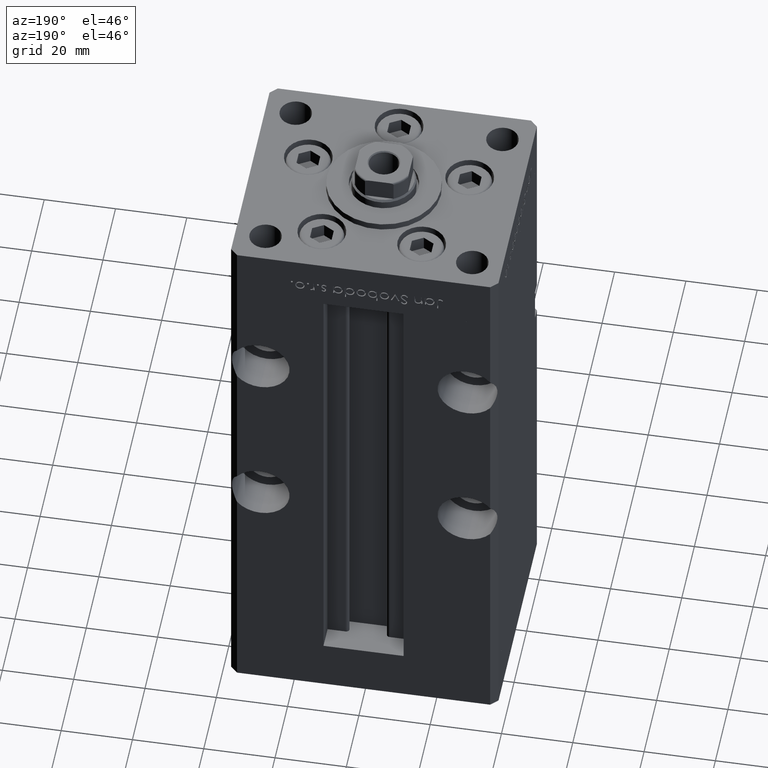
[diagram: clean part render]
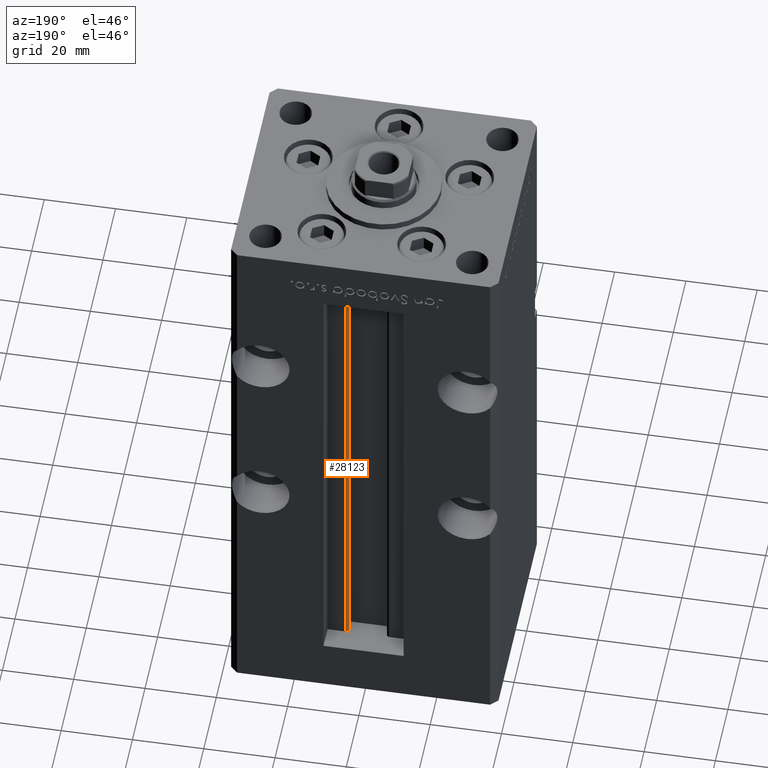
[diagram: same view with one face highlighted and labeled with its STEP entity id]
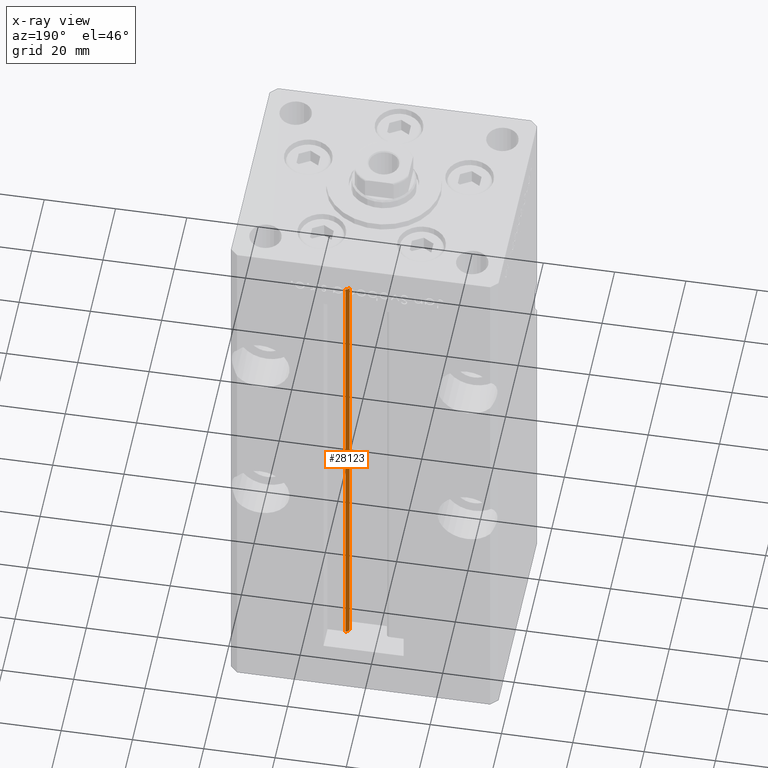
[diagram: x-ray of the same camera — body ghosted, the highlighted face saturated]
A machine part, auxiliary view. The second image highlights one B-rep face of the part: STEP entity #28123.
The next image is the same camera in x-ray: the body ghosted, the highlighted face saturated — about 0% of this face is hidden behind the body in this view.
In plain terms, the highlighted cylindrical surface (edge-blend (fillet) strip) has radius 0.9333 mm, axis along (0, 0, 1).
Its self-contained STEP definition (entity closure, byte-faithful):
#372 = VERTEX_POINT ( 'NONE', #1128 ) ;
#479 = EDGE_CURVE ( 'NONE', #30741, #53123, #1647, .T. ) ;
#1128 = CARTESIAN_POINT ( 'NONE',  ( 5.375042956467926736, 24.59999999999899245, 136.0000000000000000 ) ) ;
#1612 = DIRECTION ( 'NONE',  ( 1.000000000000000000, 0.000000000000000000, 0.000000000000000000 ) ) ;
#1647 = LINE ( 'NONE', #14025, #38222 ) ;
#5632 = EDGE_LOOP ( 'NONE', ( #42527, #52243, #28852, #18703 ) ) ;
#7353 = CARTESIAN_POINT ( 'NONE',  ( 5.375042956467928512, 24.59999999999899245, 0.000000000000000000 ) ) ;
#12740 = CARTESIAN_POINT ( 'NONE',  ( 5.375042956467928512, 24.59999999999899245, 0.000000000000000000 ) ) ;
#14025 = CARTESIAN_POINT ( 'NONE',  ( 6.183333333333980164, 26.00000000000000000, 0.000000000000000000 ) ) ;
#15993 = DIRECTION ( 'NONE',  ( -0.000000000000000000, -0.000000000000000000, 1.000000000000000000 ) ) ;
#16372 = VECTOR ( 'NONE', #15993, 1000.000000000000000 ) ;
#18703 = ORIENTED_EDGE ( 'NONE', *, *, #52241, .T. ) ;
#19181 = DIRECTION ( 'NONE',  ( -0.000000000000000000, -0.000000000000000000, 1.000000000000000000 ) ) ;
#20818 = EDGE_CURVE ( 'NONE', #32495, #372, #32624, .T. ) ;
#23735 = FACE_OUTER_BOUND ( 'NONE', #5632, .T. ) ;
#27493 = CARTESIAN_POINT ( 'NONE',  ( 6.183333333333980164, 25.06666666666599852, 0.000000000000000000 ) ) ;
#27718 = CIRCLE ( 'NONE', #47515, 0.9333333333340008142 ) ;
#28123 = ADVANCED_FACE ( 'NONE', ( #23735 ), #40132, .T. ) ;
#28301 = DIRECTION ( 'NONE',  ( 1.000000000000000000, 0.000000000000000000, 0.000000000000000000 ) ) ;
#28823 = CARTESIAN_POINT ( 'NONE',  ( 6.183333333333980164, 25.06666666666599852, 0.000000000000000000 ) ) ;
#28852 = ORIENTED_EDGE ( 'NONE', *, *, #20818, .T. ) ;
#30144 = DIRECTION ( 'NONE',  ( -0.000000000000000000, -0.000000000000000000, 1.000000000000000000 ) ) ;
#30444 = CIRCLE ( 'NONE', #32191, 0.9333333333340008142 ) ;
#30741 = VERTEX_POINT ( 'NONE', #37484 ) ;
#31452 = CARTESIAN_POINT ( 'NONE',  ( 6.183333333333980164, 26.00000000000000000, 136.0000000000000000 ) ) ;
#32191 = AXIS2_PLACEMENT_3D ( 'NONE', #28823, #40940, #28301 ) ;
#32495 = VERTEX_POINT ( 'NONE', #7353 ) ;
#32624 = LINE ( 'NONE', #12740, #16372 ) ;
#37484 = CARTESIAN_POINT ( 'NONE',  ( 6.183333333333980164, 26.00000000000000000, 0.000000000000000000 ) ) ;
#38222 = VECTOR ( 'NONE', #30144, 1000.000000000000000 ) ;
#38448 = CARTESIAN_POINT ( 'NONE',  ( 6.183333333333980164, 25.06666666666599852, 136.0000000000000000 ) ) ;
#38797 = EDGE_CURVE ( 'NONE', #32495, #30741, #30444, .T. ) ;
#40132 = CYLINDRICAL_SURFACE ( 'NONE', #47500, 0.9333333333340008142 ) ;
#40940 = DIRECTION ( 'NONE',  ( -0.000000000000000000, -0.000000000000000000, -1.000000000000000000 ) ) ;
#42475 = DIRECTION ( 'NONE',  ( 0.000000000000000000, 0.000000000000000000, -1.000000000000000000 ) ) ;
#42527 = ORIENTED_EDGE ( 'NONE', *, *, #479, .F. ) ;
#43890 = DIRECTION ( 'NONE',  ( 1.000000000000000000, 0.000000000000000000, 0.000000000000000000 ) ) ;
#47500 = AXIS2_PLACEMENT_3D ( 'NONE', #27493, #19181, #43890 ) ;
#47515 = AXIS2_PLACEMENT_3D ( 'NONE', #38448, #42475, #1612 ) ;
#52241 = EDGE_CURVE ( 'NONE', #372, #53123, #27718, .T. ) ;
#52243 = ORIENTED_EDGE ( 'NONE', *, *, #38797, .F. ) ;
#53123 = VERTEX_POINT ( 'NONE', #31452 ) ;